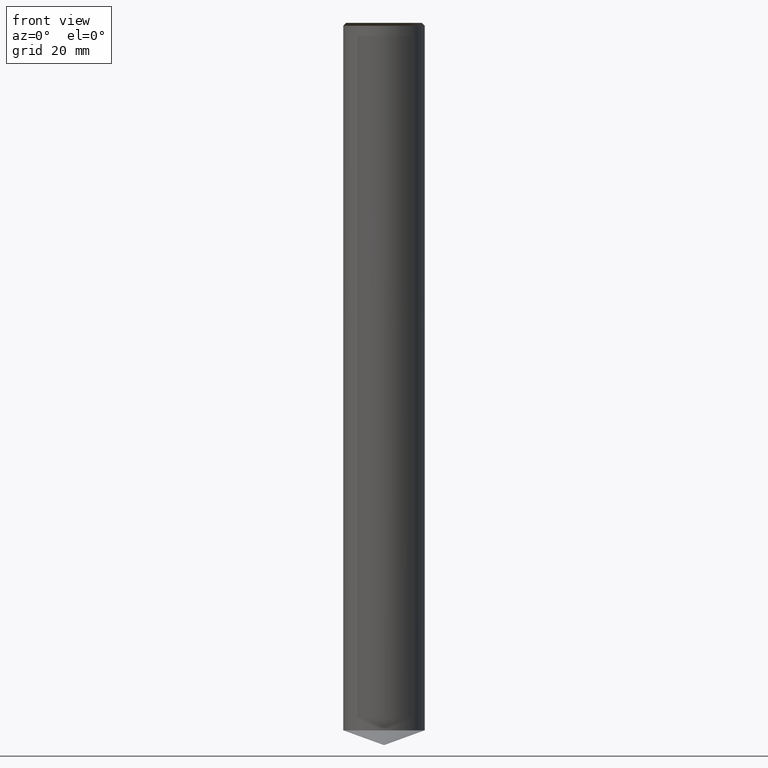
[diagram: clean part render]
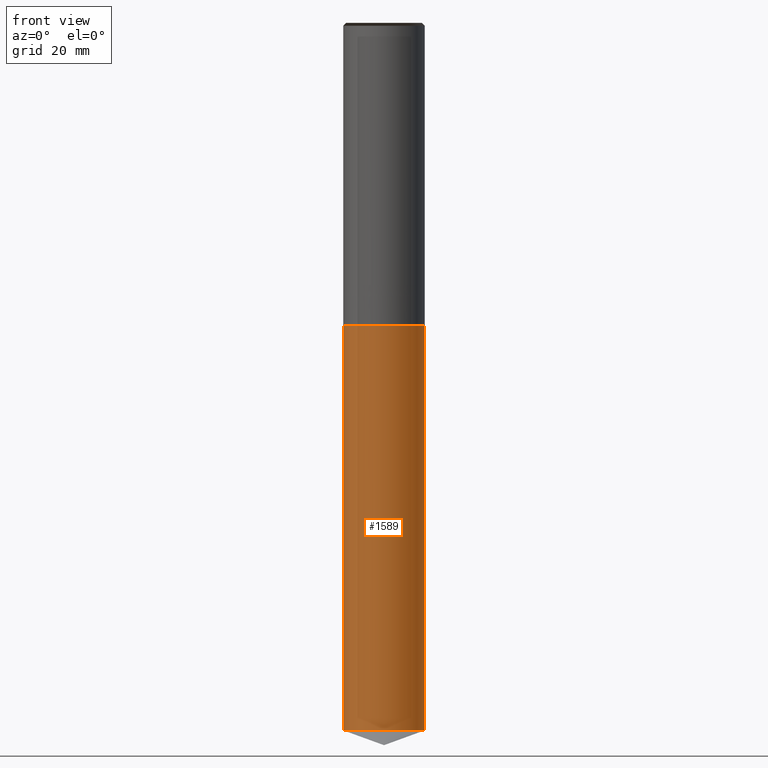
[diagram: same view with one face highlighted and labeled with its STEP entity id]
A machine part, front view. The second image highlights one B-rep face of the part: STEP entity #1589.
In plain terms, the highlighted face is a freeform B-spline surface patch.
Its self-contained STEP definition (entity closure, byte-faithful):
#1447=CARTESIAN_POINT('',(7.0,0.0,-76.452208360137));
#1451=CARTESIAN_POINT('',(-7.0,0.0,-76.452208360137));
#1452=CARTESIAN_POINT('',(7.0,0.0,-7.0));
#1456=CARTESIAN_POINT('',(-7.0,0.0,-7.0));
#1458=CARTESIAN_POINT('',(-7.0,-7.0,-76.452208360137));
#1459=CARTESIAN_POINT('',(0.0,-7.0,-76.452208360137));
#1460=CARTESIAN_POINT('',(7.0,-7.0,-76.452208360137));
#1461=CARTESIAN_POINT('',(-7.0,-7.0,-7.0));
#1462=CARTESIAN_POINT('',(0.0,-7.0,-7.0));
#1463=CARTESIAN_POINT('',(7.0,-7.0,-7.0));
#1570=(
BOUNDED_SURFACE()
B_SPLINE_SURFACE(1,2,(
(#1451,#1458,#1459,#1460,#1447),
(#1456,#1461,#1462,#1463,#1452)
), .UNSPECIFIED.,.F.,.F.,.F.)
B_SPLINE_SURFACE_WITH_KNOTS((2,2),(3,2,3),(
0.0,1.0),(
0.0,0.5,1.0), .UNSPECIFIED.)
GEOMETRIC_REPRESENTATION_ITEM()
RATIONAL_B_SPLINE_SURFACE(((1.0,0.707106781187,1.0,0.707106781187,1.0),
(1.0,0.707106781187,1.0,0.707106781187,1.0)
))
REPRESENTATION_ITEM('')
SURFACE()
);
#1571=(
BOUNDED_CURVE()
B_SPLINE_CURVE(2,(#1447,#1460,#1459,#1458,#1451),.UNSPECIFIED.,.F.,.F.)
B_SPLINE_CURVE_WITH_KNOTS((3,2,3),
(0.0,0.5,1.0),.UNSPECIFIED.)
CURVE()
GEOMETRIC_REPRESENTATION_ITEM()
RATIONAL_B_SPLINE_CURVE((1.0,0.707106781187,1.0,0.707106781187,1.0))
REPRESENTATION_ITEM('')
);
#1572=(
BOUNDED_CURVE()
B_SPLINE_CURVE(1,(#1451,#1456),.UNSPECIFIED.,.F.,.F.)
B_SPLINE_CURVE_WITH_KNOTS((2,2),
(0.0,1.0),.UNSPECIFIED.)
CURVE()
GEOMETRIC_REPRESENTATION_ITEM()
RATIONAL_B_SPLINE_CURVE((1.0,1.0))
REPRESENTATION_ITEM('')
);
#1573=(
BOUNDED_CURVE()
B_SPLINE_CURVE(2,(#1456,#1461,#1462,#1463,#1452),.UNSPECIFIED.,.F.,.F.)
B_SPLINE_CURVE_WITH_KNOTS((3,2,3),
(0.0,0.5,1.0),.UNSPECIFIED.)
CURVE()
GEOMETRIC_REPRESENTATION_ITEM()
RATIONAL_B_SPLINE_CURVE((1.0,0.707106781187,1.0,0.707106781187,1.0))
REPRESENTATION_ITEM('')
);
#1574=(
BOUNDED_CURVE()
B_SPLINE_CURVE(1,(#1452,#1447),.UNSPECIFIED.,.F.,.F.)
B_SPLINE_CURVE_WITH_KNOTS((2,2),
(0.0,1.0),.UNSPECIFIED.)
CURVE()
GEOMETRIC_REPRESENTATION_ITEM()
RATIONAL_B_SPLINE_CURVE((1.0,1.0))
REPRESENTATION_ITEM('')
);
#1575=VERTEX_POINT('',#1447);
#1576=VERTEX_POINT('',#1451);
#1577=VERTEX_POINT('',#1452);
#1578=VERTEX_POINT('',#1456);
#1579=EDGE_CURVE('',#1575,#1576,#1571,.T.);
#1580=EDGE_CURVE('',#1576,#1578,#1572,.T.);
#1581=EDGE_CURVE('',#1578,#1577,#1573,.T.);
#1582=EDGE_CURVE('',#1577,#1575,#1574,.T.);
#1583=ORIENTED_EDGE('',*,*,#1579,.T.);
#1584=ORIENTED_EDGE('',*,*,#1580,.T.);
#1585=ORIENTED_EDGE('',*,*,#1581,.T.);
#1586=ORIENTED_EDGE('',*,*,#1582,.T.);
#1587=EDGE_LOOP('',(#1583,#1584,#1585,#1586));
#1588=FACE_OUTER_BOUND('',#1587,.T.);
#1589=ADVANCED_FACE('',(#1588),#1570,.T.);